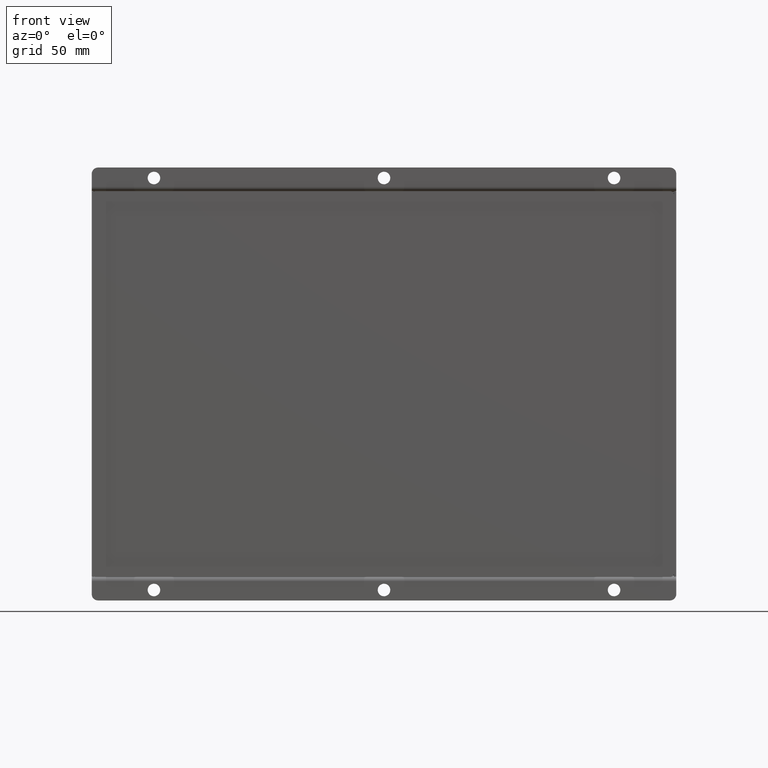
[diagram: clean part render]
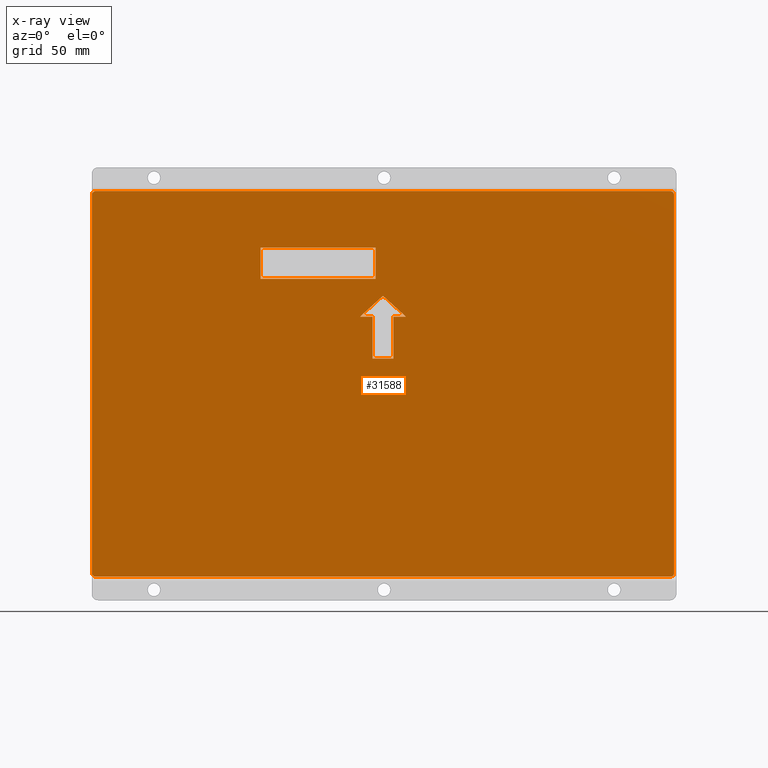
[diagram: x-ray — body ghosted, one internal face saturated and labeled with its STEP entity id]
A machine part, front view, then the same camera in x-ray: the body is ghosted and one INTERNAL B-rep face — a face not visible from any outside direction — is saturated and labeled: STEP entity #31588.
In plain terms, the highlighted planar face has unit normal (0, -1, -0).
Its self-contained STEP definition (entity closure, byte-faithful):
#793=FACE_BOUND('',#5431,.T.);
#794=FACE_BOUND('',#5432,.T.);
#1640=PLANE('',#34312);
#3558=FACE_OUTER_BOUND('',#5430,.T.);
#5430=EDGE_LOOP('',(#26437,#26438,#26439,#26440,#26441,#26442,#26443,#26444));
#5431=EDGE_LOOP('',(#26445,#26446,#26447,#26448,#26449,#26450,#26451));
#5432=EDGE_LOOP('',(#26452,#26453,#26454,#26455));
#8328=LINE('',#51739,#11247);
#8332=LINE('',#51747,#11251);
#8335=LINE('',#51753,#11254);
#8338=LINE('',#51758,#11257);
#8340=LINE('',#51766,#11259);
#8341=LINE('',#51770,#11260);
#8342=LINE('',#51774,#11261);
#8343=LINE('',#51777,#11262);
#8344=LINE('',#51780,#11263);
#8345=LINE('',#51782,#11264);
#8346=LINE('',#51784,#11265);
#8347=LINE('',#51786,#11266);
#8348=LINE('',#51788,#11267);
#8349=LINE('',#51790,#11268);
#8350=LINE('',#51791,#11269);
#11247=VECTOR('',#40910,10.);
#11251=VECTOR('',#40916,10.);
#11254=VECTOR('',#40921,10.);
#11257=VECTOR('',#40926,10.);
#11259=VECTOR('',#40934,10.);
#11260=VECTOR('',#40937,10.);
#11261=VECTOR('',#40940,10.);
#11262=VECTOR('',#40943,10.);
#11263=VECTOR('',#40944,10.);
#11264=VECTOR('',#40945,10.);
#11265=VECTOR('',#40946,10.);
#11266=VECTOR('',#40947,10.);
#11267=VECTOR('',#40948,10.);
#11268=VECTOR('',#40949,10.);
#11269=VECTOR('',#40950,10.);
#12633=CIRCLE('',#34313,2.);
#12634=CIRCLE('',#34314,2.);
#12635=CIRCLE('',#34315,2.);
#12636=CIRCLE('',#34316,2.);
#15169=VERTEX_POINT('',#51737);
#15170=VERTEX_POINT('',#51738);
#15173=VERTEX_POINT('',#51746);
#15175=VERTEX_POINT('',#51752);
#15177=VERTEX_POINT('',#51762);
#15178=VERTEX_POINT('',#51763);
#15179=VERTEX_POINT('',#51765);
#15180=VERTEX_POINT('',#51767);
#15181=VERTEX_POINT('',#51769);
#15182=VERTEX_POINT('',#51771);
#15183=VERTEX_POINT('',#51773);
#15184=VERTEX_POINT('',#51775);
#15185=VERTEX_POINT('',#51778);
#15186=VERTEX_POINT('',#51779);
#15187=VERTEX_POINT('',#51781);
#15188=VERTEX_POINT('',#51783);
#15189=VERTEX_POINT('',#51785);
#15190=VERTEX_POINT('',#51787);
#15191=VERTEX_POINT('',#51789);
#19072=EDGE_CURVE('',#15169,#15170,#8328,.T.);
#19076=EDGE_CURVE('',#15173,#15169,#8332,.T.);
#19079=EDGE_CURVE('',#15175,#15173,#8335,.T.);
#19082=EDGE_CURVE('',#15170,#15175,#8338,.T.);
#19084=EDGE_CURVE('',#15177,#15178,#12633,.T.);
#19085=EDGE_CURVE('',#15177,#15179,#8340,.T.);
#19086=EDGE_CURVE('',#15180,#15179,#12634,.T.);
#19087=EDGE_CURVE('',#15180,#15181,#8341,.T.);
#19088=EDGE_CURVE('',#15182,#15181,#12635,.T.);
#19089=EDGE_CURVE('',#15182,#15183,#8342,.T.);
#19090=EDGE_CURVE('',#15184,#15183,#12636,.T.);
#19091=EDGE_CURVE('',#15184,#15178,#8343,.T.);
#19092=EDGE_CURVE('',#15185,#15186,#8344,.T.);
#19093=EDGE_CURVE('',#15186,#15187,#8345,.T.);
#19094=EDGE_CURVE('',#15187,#15188,#8346,.T.);
#19095=EDGE_CURVE('',#15188,#15189,#8347,.T.);
#19096=EDGE_CURVE('',#15189,#15190,#8348,.T.);
#19097=EDGE_CURVE('',#15190,#15191,#8349,.T.);
#19098=EDGE_CURVE('',#15191,#15185,#8350,.T.);
#26437=ORIENTED_EDGE('',*,*,#19084,.F.);
#26438=ORIENTED_EDGE('',*,*,#19085,.T.);
#26439=ORIENTED_EDGE('',*,*,#19086,.F.);
#26440=ORIENTED_EDGE('',*,*,#19087,.T.);
#26441=ORIENTED_EDGE('',*,*,#19088,.F.);
#26442=ORIENTED_EDGE('',*,*,#19089,.T.);
#26443=ORIENTED_EDGE('',*,*,#19090,.F.);
#26444=ORIENTED_EDGE('',*,*,#19091,.T.);
#26445=ORIENTED_EDGE('',*,*,#19092,.T.);
#26446=ORIENTED_EDGE('',*,*,#19093,.T.);
#26447=ORIENTED_EDGE('',*,*,#19094,.T.);
#26448=ORIENTED_EDGE('',*,*,#19095,.T.);
#26449=ORIENTED_EDGE('',*,*,#19096,.T.);
#26450=ORIENTED_EDGE('',*,*,#19097,.T.);
#26451=ORIENTED_EDGE('',*,*,#19098,.T.);
#26452=ORIENTED_EDGE('',*,*,#19072,.T.);
#26453=ORIENTED_EDGE('',*,*,#19082,.T.);
#26454=ORIENTED_EDGE('',*,*,#19079,.T.);
#26455=ORIENTED_EDGE('',*,*,#19076,.T.);
#31588=ADVANCED_FACE('',(#3558,#793,#794),#1640,.F.);
#34312=AXIS2_PLACEMENT_3D('',#51761,#40930,#40931);
#34313=AXIS2_PLACEMENT_3D('',#51764,#40932,#40933);
#34314=AXIS2_PLACEMENT_3D('',#51768,#40935,#40936);
#34315=AXIS2_PLACEMENT_3D('',#51772,#40938,#40939);
#34316=AXIS2_PLACEMENT_3D('',#51776,#40941,#40942);
#40910=DIRECTION('',(5.9211894646675E-16,-1.,0.));
#40916=DIRECTION('',(-1.,0.,0.));
#40921=DIRECTION('',(2.96059473233375E-16,1.,0.));
#40926=DIRECTION('',(1.,0.,0.));
#40930=DIRECTION('center_axis',(0.,0.,1.));
#40931=DIRECTION('ref_axis',(1.,0.,0.));
#40932=DIRECTION('center_axis',(0.,0.,1.));
#40933=DIRECTION('ref_axis',(-0.707106781186548,0.707106781186548,0.));
#40934=DIRECTION('',(1.,2.55132041565566E-16,0.));
#40935=DIRECTION('center_axis',(0.,0.,1.));
#40936=DIRECTION('ref_axis',(0.707106781186548,0.707106781186548,0.));
#40937=DIRECTION('',(0.,-1.,0.));
#40938=DIRECTION('center_axis',(0.,0.,1.));
#40939=DIRECTION('ref_axis',(0.707106781186548,-0.707106781186548,0.));
#40940=DIRECTION('',(-1.,0.,0.));
#40941=DIRECTION('center_axis',(0.,0.,1.));
#40942=DIRECTION('ref_axis',(-0.707106781186548,-0.707106781186548,0.));
#40943=DIRECTION('',(9.62795034905284E-17,1.,0.));
#40944=DIRECTION('',(-0.739940073395944,0.672672793996312,0.));
#40945=DIRECTION('',(-0.739940073395944,-0.672672793996312,0.));
#40946=DIRECTION('',(1.,0.,0.));
#40947=DIRECTION('',(3.60822483003176E-16,-1.,0.));
#40948=DIRECTION('',(1.,0.,0.));
#40949=DIRECTION('',(1.66533453693773E-16,1.,0.));
#40950=DIRECTION('',(1.,0.,0.));
#51737=CARTESIAN_POINT('',(-58.53,65.25,0.));
#51738=CARTESIAN_POINT('',(-58.53,50.25,0.));
#51739=CARTESIAN_POINT('',(-58.53,32.625,0.));
#51746=CARTESIAN_POINT('',(-3.53000000000003,65.25,0.));
#51747=CARTESIAN_POINT('',(-1.76500000000001,65.25,0.));
#51752=CARTESIAN_POINT('',(-3.53000000000003,50.25,0.));
#51753=CARTESIAN_POINT('',(-3.53000000000004,25.125,0.));
#51758=CARTESIAN_POINT('',(-29.265,50.25,0.));
#51761=CARTESIAN_POINT('Origin',(0.,-3.11629771663683E-14,0.));
#51762=CARTESIAN_POINT('',(-137.25,92.25,0.));
#51763=CARTESIAN_POINT('',(-139.25,90.2499999999999,0.));
#51764=CARTESIAN_POINT('Origin',(-137.25,90.25,0.));
#51765=CARTESIAN_POINT('',(137.25,92.25,0.));
#51766=CARTESIAN_POINT('',(-139.25,92.25,0.));
#51767=CARTESIAN_POINT('',(139.25,90.25,0.));
#51768=CARTESIAN_POINT('Origin',(137.25,90.25,0.));
#51769=CARTESIAN_POINT('',(139.25,-90.25,0.));
#51770=CARTESIAN_POINT('',(139.25,92.25,0.));
#51771=CARTESIAN_POINT('',(137.25,-92.2500000000001,0.));
#51772=CARTESIAN_POINT('Origin',(137.25,-90.2500000000001,0.));
#51773=CARTESIAN_POINT('',(-137.25,-92.2500000000001,0.));
#51774=CARTESIAN_POINT('',(139.25,-92.2500000000001,0.));
#51775=CARTESIAN_POINT('',(-139.25,-90.2500000000001,0.));
#51776=CARTESIAN_POINT('Origin',(-137.25,-90.2500000000001,0.));
#51777=CARTESIAN_POINT('',(-139.25,-92.2500000000001,0.));
#51778=CARTESIAN_POINT('',(11.,32.1355764097611,0.));
#51779=CARTESIAN_POINT('',(0.,42.1355764097611,0.));
#51780=CARTESIAN_POINT('',(15.9862294232437,27.6026405704486,0.));
#51781=CARTESIAN_POINT('',(-11.,32.1355764097611,0.));
#51782=CARTESIAN_POINT('',(-10.4862294232437,32.6026405704486,0.));
#51783=CARTESIAN_POINT('',(-4.99999999999999,32.1355764097611,0.));
#51784=CARTESIAN_POINT('',(2.50000000000001,32.1355764097611,0.));
#51785=CARTESIAN_POINT('',(-4.99999999999998,12.1355764097611,0.));
#51786=CARTESIAN_POINT('',(-4.99999999999998,16.0677882048805,0.));
#51787=CARTESIAN_POINT('',(5.00000000000001,12.1355764097611,0.));
#51788=CARTESIAN_POINT('',(-2.49999999999999,12.1355764097611,0.));
#51789=CARTESIAN_POINT('',(5.00000000000002,32.1355764097611,0.));
#51790=CARTESIAN_POINT('',(5.00000000000001,6.06778820488053,0.));
#51791=CARTESIAN_POINT('',(2.50000000000001,32.1355764097611,0.));